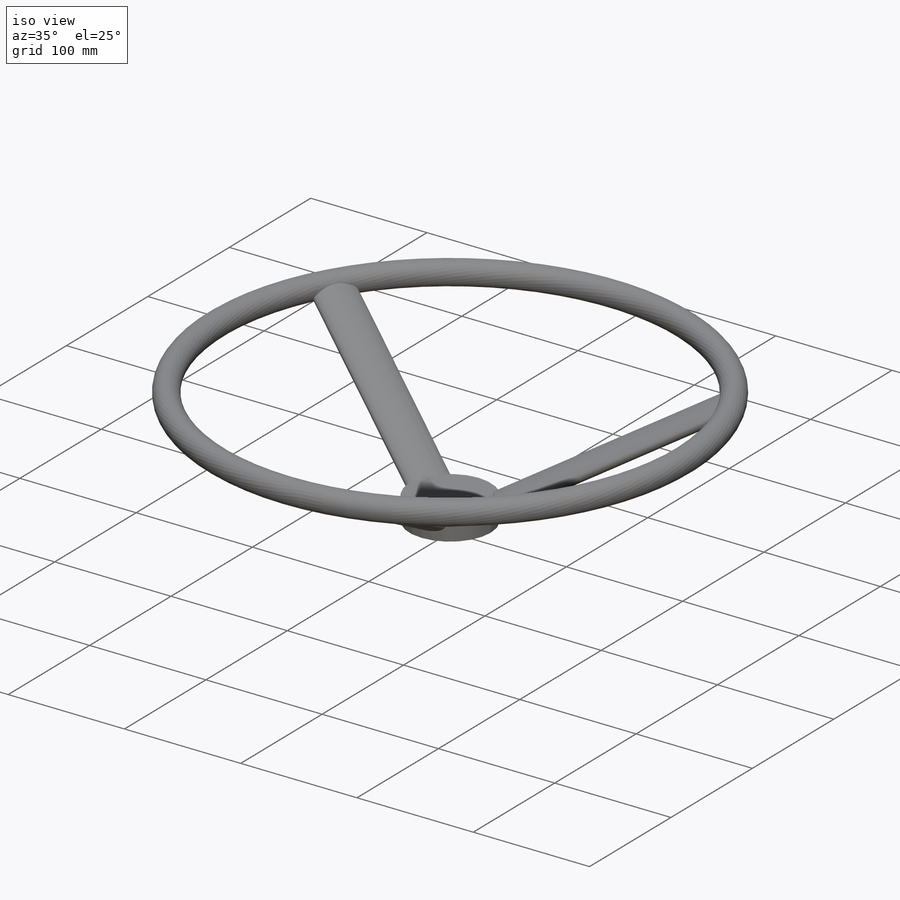
[diagram: iso view]
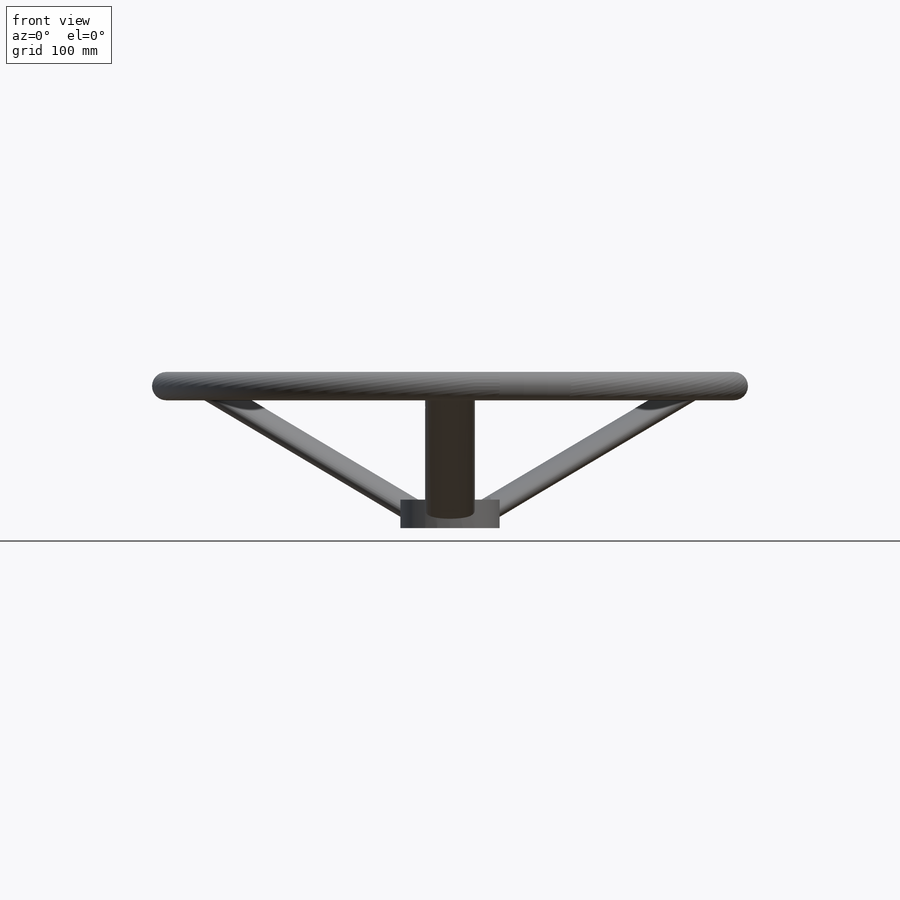
[diagram: front view]
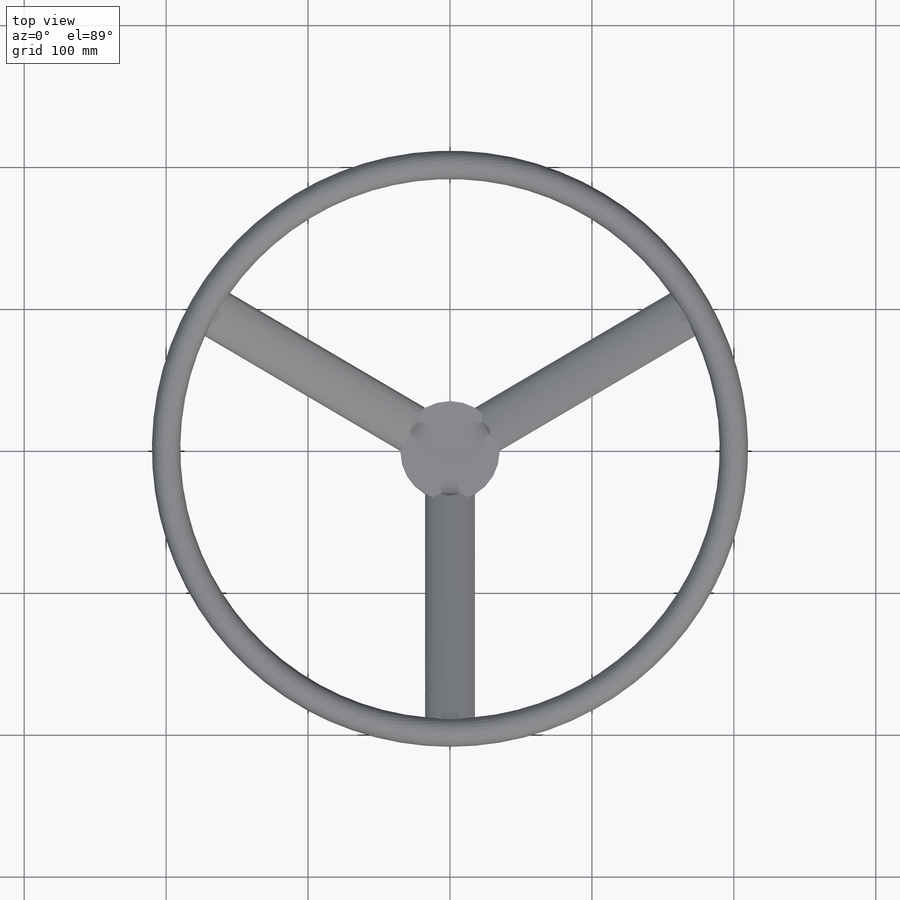
[diagram: top view]
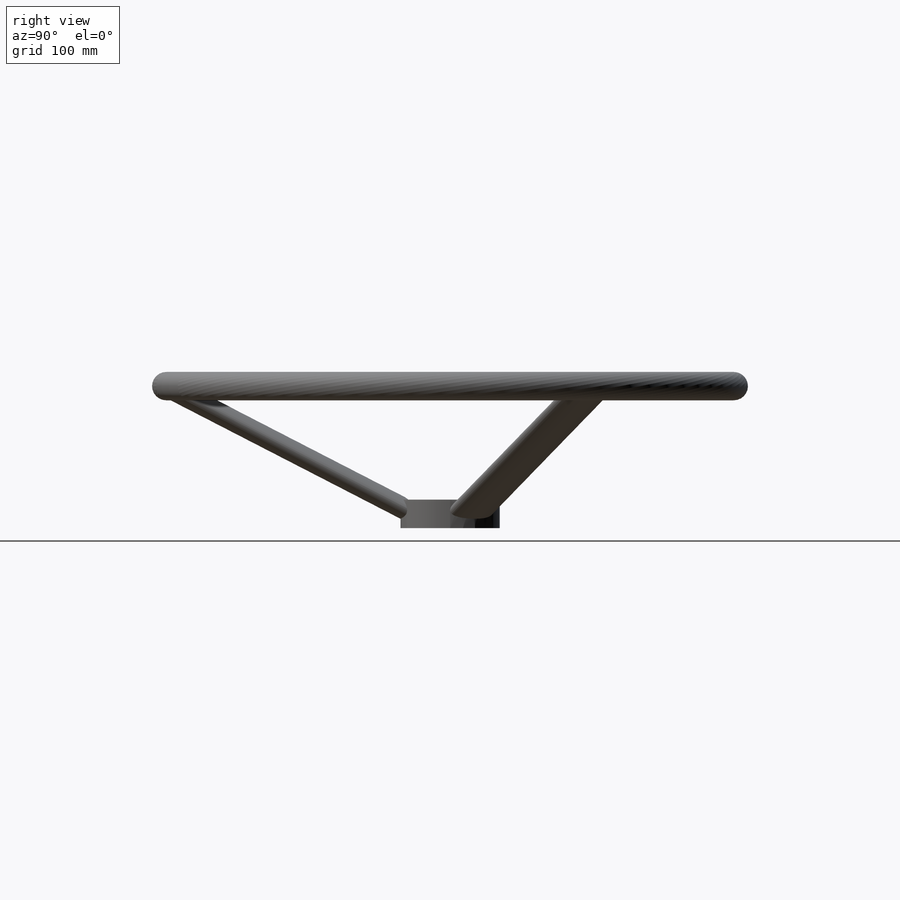
[diagram: right view]
SOLIDWORKS PART (.sldprt)
format: sldprt  version: not decoded by parser v0  size: 196,096 bytes
history: native  units: mm
features: sketch x3, material x1, revolve x1, plane x1, extrude x1, chamfer x1, pattern_circular x1 (+13 scaffold rows collapsed)
feature tree (22):
  scaffold x13  (default folders/planes/origin — collapsed)
  material  "Material <not specified>"
  sketch  "Sketch1"  dims[c1.D5=20.0mm c1.D1=100.0mm c1.D2=200.0mm c1.D3=35.0mm c1.D4=20.0mm c2.D5=52.0mm]
  revolve  "Revolve1"  Angle=360deg
  sketch  "Sketch2"  dims[D1=5.0mm]
  plane  "Plane1"
  sketch  "Sketch3"  dims[D1=35.0mm D2=15.0mm]
  extrude  "Boss-Extrude1"  [1 undecoded]
  chamfer  "Chamfer1"  Distance=5mm Angle=45deg
  pattern_circular  "CirPattern1"  Count=3 Angle=360deg
decode coverage: 6 of 7 modeling features carry decoded parameters
note: 1 parameter value undecoded
note: suppression state not decoded; provenance and decode notes live in map.json
